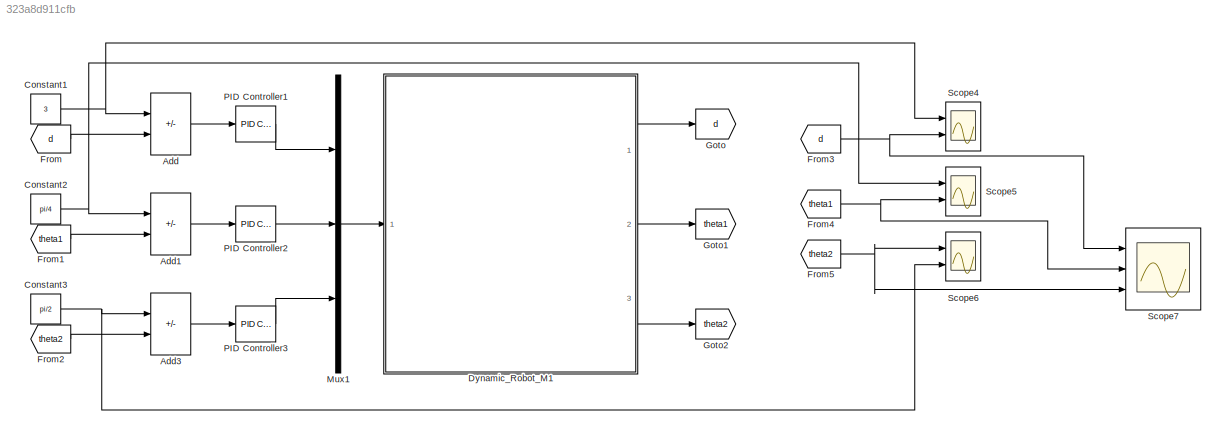
MODEL slx_323a8d911cfb
KIND model
CONFIG AbsTol = auto
CONFIG EnableMultiTasking = off
CONFIG FixedStep = 0.01
CONFIG MaxStep = auto
CONFIG MinStep = auto
CONFIG RelTol = 1e-3
CONFIG SampleTimeConstraint = Unconstrained
CONFIG SolverName = FixedStepAuto
CONFIG StartTime = 0.0
CONFIG StopTime = 50
BLOCK [Sum] Add
  IconShape = rectangular
  Inputs = +-
  Ports = [2, 1]
BLOCK [Sum] Add1
  IconShape = rectangular
  Inputs = +-
  Ports = [2, 1]
BLOCK [Sum] Add3
  IconShape = rectangular
  Inputs = +-
  Ports = [2, 1]
BLOCK [Constant] Constant1
  Value = 3
BLOCK [Constant] Constant2
  Value = pi/4
BLOCK [Constant] Constant3
  Value = pi/2
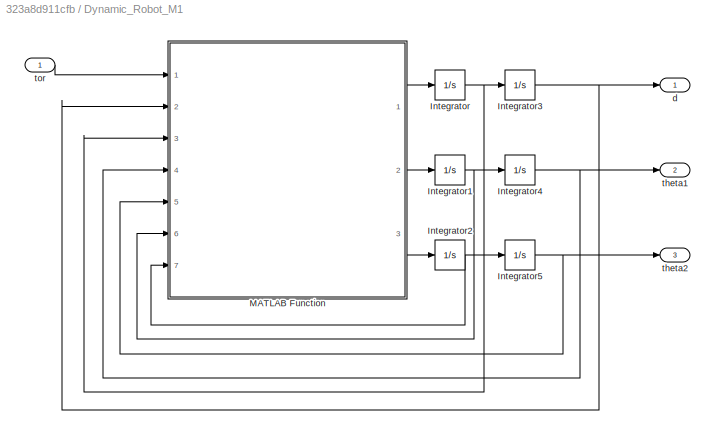
BLOCK [SubSystem] Dynamic_Robot_M1
  Ports = [1, 3]
  RequestExecContextInheritance = off
BLOCK [Integrator] Dynamic_Robot_M1/Integrator
  Ports = [1, 1]
BLOCK [Integrator] Dynamic_Robot_M1/Integrator1
  Ports = [1, 1]
BLOCK [Integrator] Dynamic_Robot_M1/Integrator2
  Ports = [1, 1]
BLOCK [Integrator] Dynamic_Robot_M1/Integrator3
  Ports = [1, 1]
BLOCK [Integrator] Dynamic_Robot_M1/Integrator4
  Ports = [1, 1]
BLOCK [Integrator] Dynamic_Robot_M1/Integrator5
  Ports = [1, 1]
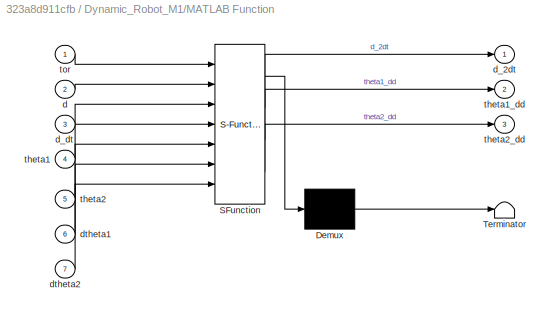
BLOCK [SubSystem] Dynamic_Robot_M1/MATLAB Function
  ErrorFcn = Stateflow.Translate.translate
  PermitHierarchicalResolution = ExplicitOnly
  Ports = [7, 3]
  RequestExecContextInheritance = off
  SFBlockType = MATLAB Function
  TreatAsAtomicUnit = on
BLOCK [Demux] Dynamic_Robot_M1/MATLAB Function/ Demux 
  Outputs = 1
  Ports = [1, 1]
BLOCK [S-Function] Dynamic_Robot_M1/MATLAB Function/ SFunction 
  EnableBusSupport = on
  FunctionName = sf_sfun
  PortCounts = [7 4]
  Ports = [7, 4]
  SFcnIsStateOwnerBlock = off
  SFunctionDeploymentMode = off
  Tag = Stateflow S-Function 1
BLOCK [Terminator] Dynamic_Robot_M1/MATLAB Function/ Terminator 
BLOCK [Inport] Dynamic_Robot_M1/MATLAB Function/d
  Port = 2
BLOCK [Outport] Dynamic_Robot_M1/MATLAB Function/d_2dt
  VectorParamsAs1DForOutWhenUnconnected = off
BLOCK [Inport] Dynamic_Robot_M1/MATLAB Function/d_dt
  Port = 3
BLOCK [Inport] Dynamic_Robot_M1/MATLAB Function/dtheta1
  Port = 6
BLOCK [Inport] Dynamic_Robot_M1/MATLAB Function/dtheta2
  Port = 7
BLOCK [Inport] Dynamic_Robot_M1/MATLAB Function/theta1
  Port = 4
BLOCK [Outport] Dynamic_Robot_M1/MATLAB Function/theta1_dd
  Port = 2
  VectorParamsAs1DForOutWhenUnconnected = off
BLOCK [Inport] Dynamic_Robot_M1/MATLAB Function/theta2
  Port = 5
BLOCK [Outport] Dynamic_Robot_M1/MATLAB Function/theta2_dd
  Port = 3
  VectorParamsAs1DForOutWhenUnconnected = off
BLOCK [Inport] Dynamic_Robot_M1/MATLAB Function/tor
BLOCK [Outport] Dynamic_Robot_M1/d
  VectorParamsAs1DForOutWhenUnconnected = off
BLOCK [Outport] Dynamic_Robot_M1/theta1
  Port = 2
  VectorParamsAs1DForOutWhenUnconnected = off
BLOCK [Outport] Dynamic_Robot_M1/theta2
  Port = 3
  VectorParamsAs1DForOutWhenUnconnected = off
BLOCK [Inport] Dynamic_Robot_M1/tor
BLOCK [From] From
  GotoTag = d
BLOCK [From] From1
  GotoTag = theta1
BLOCK [From] From2
  GotoTag = theta2
BLOCK [From] From3
  GotoTag = d
BLOCK [From] From4
  GotoTag = theta1
BLOCK [From] From5
  GotoTag = theta2
BLOCK [Goto] Goto
  GotoTag = d
BLOCK [Goto] Goto1
  GotoTag = theta1
BLOCK [Goto] Goto2
  GotoTag = theta2
BLOCK [Mux] Mux1
  DisplayOption = bar
  Inputs = 3
  Ports = [3, 1]
BLOCK [Reference] PID Controller1  REF=slpidlib/PID Controller
  Ports = [1, 1]
  SourceBlock = slpidlib/PID Controller
  SourceProductBaseCode = SL
  SourceType = PID 1dof
BLOCK [Reference] PID Controller2  REF=slpidlib/PID Controller
  Ports = [1, 1]
  SourceBlock = slpidlib/PID Controller
  SourceProductBaseCode = SL
  SourceType = PID 1dof
BLOCK [Reference] PID Controller3  REF=slpidlib/PID Controller
  Ports = [1, 1]
  SourceBlock = slpidlib/PID Controller
  SourceProductBaseCode = SL
  SourceType = PID 1dof
BLOCK [Scope] Scope4
  Floating = off
  NumInputPorts = 2
  Ports = [2]
  ScopeSpecificationString = Simulink.scopes.TimeScopeBlockCfg('CurrentConfiguration', extmgr.ConfigurationSet(extmgr.Configuration('Core','General UI',true),extmgr.Configuration('Core','Source UI',true),extmgr.Configuration('Sources','WiredSimulink',true,'DataLoggingVariableName','ScopeData4'),extmgr.Configuration('Visuals','Time Domain',true,'SerializedDisplays',{struct('MinYLimReal','-0.375','MaxYLimReal','3.375','YLabelRe...<+1404ch>
BLOCK [Scope] Scope5
  Floating = off
  NumInputPorts = 2
  Ports = [2]
  ScopeSpecificationString = Simulink.scopes.TimeScopeBlockCfg('CurrentConfiguration', extmgr.ConfigurationSet(extmgr.Configuration('Core','General UI',true),extmgr.Configuration('Core','Source UI',true),extmgr.Configuration('Sources','WiredSimulink',true,'DataLoggingVariableName','ScopeData5'),extmgr.Configuration('Visuals','Time Domain',true,'SerializedDisplays',{struct('MinYLimReal','-0.60785','MaxYLimReal','3.7549','YLabe...<+1431ch>
BLOCK [Scope] Scope6
  Floating = off
  NumInputPorts = 2
  Ports = [2]
  ScopeSpecificationString = Simulink.scopes.TimeScopeBlockCfg('CurrentConfiguration', extmgr.ConfigurationSet(extmgr.Configuration('Core','General UI',true),extmgr.Configuration('Core','Source UI',true),extmgr.Configuration('Sources','WiredSimulink',true,'DataLoggingVariableName','ScopeData6'),extmgr.Configuration('Visuals','Time Domain',true,'SerializedDisplays',{struct('MinYLimReal','-0.24785','MaxYLimReal','2.23061','YLab...<+1416ch>
BLOCK [Scope] Scope7
  Floating = off
  NumInputPorts = 3
  Ports = [3]
  ScopeSpecificationString = Simulink.scopes.TimeScopeBlockCfg('CurrentConfiguration', extmgr.ConfigurationSet(extmgr.Configuration('Core','General UI',true),extmgr.Configuration('Core','Source UI',true),extmgr.Configuration('Sources','WiredSimulink',true,'DataLoggingVariableName','ScopeData1'),extmgr.Configuration('Visuals','Time Domain',true,'SerializedDisplays',{struct('MinYLimReal','-0.91609','MaxYLimReal','3.43512','YLab...<+1419ch>
LINE Add1:1 -> PID Controller2:1
LINE Add3:1 -> PID Controller3:1
LINE Add:1 -> PID Controller1:1
NET Constant1:1 -> Add:1, Scope4:1
NET Constant2:1 -> Add1:1, Scope5:1
NET Constant3:1 -> Add3:1, Scope6:2
NET Dynamic_Robot_M1/Integrator1:1 -> Dynamic_Robot_M1/Integrator4:1, Dynamic_Robot_M1/MATLAB Function:6
NET Dynamic_Robot_M1/Integrator2:1 -> Dynamic_Robot_M1/Integrator5:1, Dynamic_Robot_M1/MATLAB Function:7
NET Dynamic_Robot_M1/Integrator3:1 -> Dynamic_Robot_M1/MATLAB Function:2, Dynamic_Robot_M1/d:1
NET Dynamic_Robot_M1/Integrator4:1 -> Dynamic_Robot_M1/MATLAB Function:4, Dynamic_Robot_M1/theta1:1
NET Dynamic_Robot_M1/Integrator5:1 -> Dynamic_Robot_M1/MATLAB Function:5, Dynamic_Robot_M1/theta2:1
NET Dynamic_Robot_M1/Integrator:1 -> Dynamic_Robot_M1/Integrator3:1, Dynamic_Robot_M1/MATLAB Function:3
LINE Dynamic_Robot_M1/MATLAB Function:1 -> Dynamic_Robot_M1/Integrator:1
LINE Dynamic_Robot_M1/MATLAB Function:2 -> Dynamic_Robot_M1/Integrator1:1
LINE Dynamic_Robot_M1/MATLAB Function:3 -> Dynamic_Robot_M1/Integrator2:1
LINE Dynamic_Robot_M1/tor:1 -> Dynamic_Robot_M1/MATLAB Function:1
LINE Dynamic_Robot_M1:1 -> Goto:1
LINE Dynamic_Robot_M1:2 -> Goto1:1
LINE Dynamic_Robot_M1:3 -> Goto2:1
LINE From1:1 -> Add1:2
LINE From2:1 -> Add3:2
NET From3:1 -> Scope4:2, Scope7:1
NET From4:1 -> Scope5:2, Scope7:2
NET From5:1 -> Scope6:1, Scope7:3
LINE From:1 -> Add:2
LINE Mux1:1 -> Dynamic_Robot_M1:1
LINE PID Controller1:1 -> Mux1:1
LINE PID Controller2:1 -> Mux1:2
LINE PID Controller3:1 -> Mux1:3
note: NET lines group one-source signal fan-out (src -> all destinations, sorted); 1:1 wires keep LINE
CHART Dynamic_Robot_M1/MATLAB Function states=1 transitions=1
  STATE_LABEL 'eML_blk_kernel()'
  STATE_LABEL 'SCRIPT:\nfunction [d_2dt, theta1_dd, theta2_dd] = Dynamic(tor,d, d_dt,theta1, theta2, dtheta1, dtheta2)\nm1=1; m2=1; m3=1;\nL1=1; L2=1; L3=1;\ng=9.81;\n% MA Tran M\nM11=m1+m2+m3;\nM12=0;\nM13=0;\nM21=0;\nM22=L2*L2*m2+L2*L2*m3+L3*L3*m3+2*L2*L3*m3*cos(theta2);\nM23=L3*m3*(L3+L2*cos(theta2));\nM31=0;\nM32=L3*m3*(L3+L2*cos(theta2));\nM33=L3*L3*m3;\n% Ma tran V\nV11=0; \nV12= -L2*L3*dtheta2*m3*sin(theta2)*(2*dtheta1+dt...<+316ch>'
CHART  states=0 transitions=0
